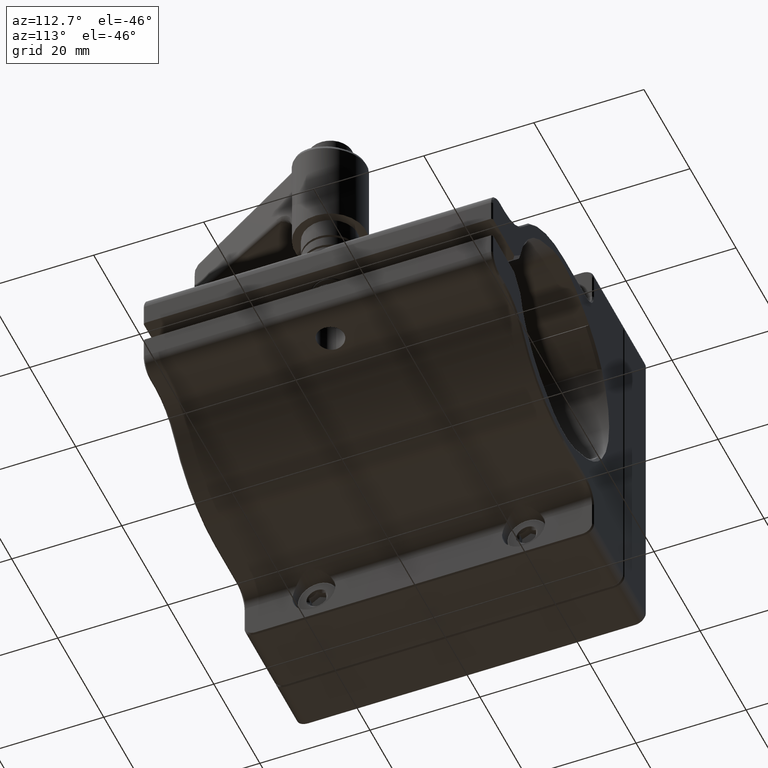
[diagram: clean part render]
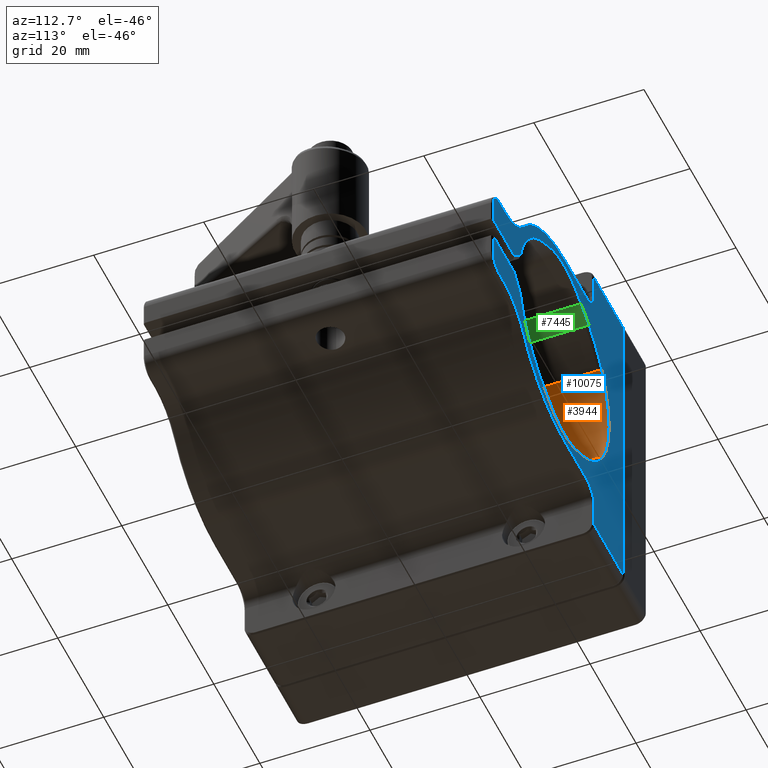
[diagram: same view with three faces highlighted in distinct colors, each labeled with its STEP entity id]
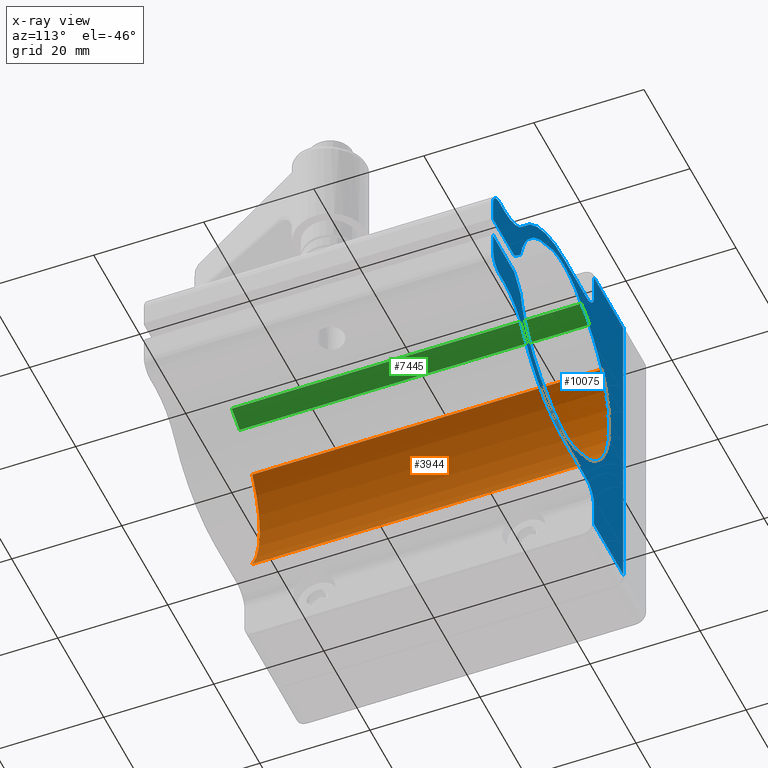
[diagram: x-ray of the same camera — body ghosted, the three highlighted faces saturated]
A machine part, auxiliary view with three faces highlighted in distinct colors.
The next image is the same camera in x-ray (body ghosted, the three faces saturated) — at least one of them is partly hidden behind the body in this view.
Their STEP definitions:

[orange] entity #3944 — the highlighted cylindrical surface (partial cylindrical patch) has radius 19.55 mm, axis along (-0, 1, -0).
#443 = VERTEX_POINT ( 'NONE', #1757 ) ;
#1004 = ORIENTED_EDGE ( 'NONE', *, *, #11285, .F. ) ;
#1007 = CARTESIAN_POINT ( 'NONE',  ( 3.001532178586801880, 31.75000000000000000, 10.79036806285064642 ) ) ;
#1424 = VECTOR ( 'NONE', #7777, 1000.000000000000000 ) ;
#1490 = VERTEX_POINT ( 'NONE', #13566 ) ;
#1684 = CIRCLE ( 'NONE', #2959, 19.55000000000000071 ) ;
#1757 = CARTESIAN_POINT ( 'NONE',  ( 3.001532178586801880, -31.75000000000001421, 10.79036806285064642 ) ) ;
#1894 = ORIENTED_EDGE ( 'NONE', *, *, #11329, .F. ) ;
#2117 = AXIS2_PLACEMENT_3D ( 'NONE', #8282, #6907, #13236 ) ;
#2224 = DIRECTION ( 'NONE',  ( 0.000000000000000000, 0.000000000000000000, 1.000000000000000000 ) ) ;
#2959 = AXIS2_PLACEMENT_3D ( 'NONE', #10857, #7138, #15984 ) ;
#3944 = ADVANCED_FACE ( 'NONE', ( #4307 ), #9265, .F. ) ;
#4039 = LINE ( 'NONE', #16057, #1424 ) ;
#4307 = FACE_OUTER_BOUND ( 'NONE', #9374, .T. ) ;
#5311 = DIRECTION ( 'NONE',  ( -0.000000000000000000, 1.000000000000000000, -0.000000000000000000 ) ) ;
#6059 = EDGE_CURVE ( 'NONE', #14766, #1490, #15122, .T. ) ;
#6907 = DIRECTION ( 'NONE',  ( -0.000000000000000000, 1.000000000000000000, -0.000000000000000000 ) ) ;
#7005 = DIRECTION ( 'NONE',  ( 0.000000000000000000, 1.000000000000000000, 0.000000000000000000 ) ) ;
#7138 = DIRECTION ( 'NONE',  ( 0.000000000000000000, 1.000000000000000000, 0.000000000000000000 ) ) ;
#7777 = DIRECTION ( 'NONE',  ( -0.000000000000000000, 1.000000000000000000, -0.000000000000000000 ) ) ;
#8282 = CARTESIAN_POINT ( 'NONE',  ( 19.30400000000000205, -31.75000000000001421, 0.000000000000000000 ) ) ;
#8441 = VERTEX_POINT ( 'NONE', #1007 ) ;
#8548 = CARTESIAN_POINT ( 'NONE',  ( 3.001532178586803656, -31.75000000000001421, -10.79036806285064642 ) ) ;
#8879 = AXIS2_PLACEMENT_3D ( 'NONE', #12209, #7005, #2224 ) ;
#9265 = CYLINDRICAL_SURFACE ( 'NONE', #2117, 19.55000000000000071 ) ;
#9311 = EDGE_CURVE ( 'NONE', #1490, #8441, #12500, .T. ) ;
#9374 = EDGE_LOOP ( 'NONE', ( #14171, #1894, #1004, #13448 ) ) ;
#9942 = VECTOR ( 'NONE', #5311, 1000.000000000000000 ) ;
#10082 = CARTESIAN_POINT ( 'NONE',  ( 3.001532178586803656, -31.75000000000001421, -10.79036806285064642 ) ) ;
#10857 = CARTESIAN_POINT ( 'NONE',  ( 19.30400000000000205, -31.75000000000001421, 0.000000000000000000 ) ) ;
#11285 = EDGE_CURVE ( 'NONE', #14766, #443, #1684, .T. ) ;
#11329 = EDGE_CURVE ( 'NONE', #443, #8441, #4039, .T. ) ;
#12209 = CARTESIAN_POINT ( 'NONE',  ( 19.30400000000000205, 31.75000000000000000, 0.000000000000000000 ) ) ;
#12500 = CIRCLE ( 'NONE', #8879, 19.55000000000000071 ) ;
#13236 = DIRECTION ( 'NONE',  ( 0.000000000000000000, 0.000000000000000000, 1.000000000000000000 ) ) ;
#13448 = ORIENTED_EDGE ( 'NONE', *, *, #6059, .T. ) ;
#13566 = CARTESIAN_POINT ( 'NONE',  ( 3.001532178586803656, 31.75000000000000000, -10.79036806285064642 ) ) ;
#14171 = ORIENTED_EDGE ( 'NONE', *, *, #9311, .T. ) ;
#14766 = VERTEX_POINT ( 'NONE', #8548 ) ;
#15122 = LINE ( 'NONE', #10082, #9942 ) ;
#15984 = DIRECTION ( 'NONE',  ( 0.000000000000000000, 0.000000000000000000, 1.000000000000000000 ) ) ;
#16057 = CARTESIAN_POINT ( 'NONE',  ( 3.001532178586801880, -31.75000000000001421, 10.79036806285064642 ) ) ;

[blue] entity #10075 — the highlighted planar face has unit normal (0, -1, 0).
#56 = CARTESIAN_POINT ( 'NONE',  ( 19.30400000000000205, 31.75000000000000000, 0.000000000000000000 ) ) ;
#63 = PLANE ( 'NONE',  #3170 ) ;
#67 = CARTESIAN_POINT ( 'NONE',  ( 45.25009797252760535, 31.75000000000000000, -8.649999999999984368 ) ) ;
#72 = CARTESIAN_POINT ( 'NONE',  ( 19.30400000000000205, 31.75000000000000000, 0.000000000000000000 ) ) ;
#102 = DIRECTION ( 'NONE',  ( 0.000000000000000000, 0.000000000000000000, -1.000000000000000000 ) ) ;
#184 = VERTEX_POINT ( 'NONE', #3443 ) ;
#344 = DIRECTION ( 'NONE',  ( 0.000000000000000000, 0.000000000000000000, -1.000000000000000000 ) ) ;
#365 = CARTESIAN_POINT ( 'NONE',  ( 19.30399999999999849, 31.75000000000000000, -21.84999999999999787 ) ) ;
#385 = CARTESIAN_POINT ( 'NONE',  ( 26.63745990643354133, 31.75000000000000000, -18.12244094488190171 ) ) ;
#426 = AXIS2_PLACEMENT_3D ( 'NONE', #3882, #11532, #6577 ) ;
#467 = CARTESIAN_POINT ( 'NONE',  ( 6.604000000000000092, 31.75000000000000000, 21.84999999999998366 ) ) ;
#519 = VECTOR ( 'NONE', #6858, 1000.000000000000000 ) ;
#530 = EDGE_CURVE ( 'NONE', #4277, #6071, #10355, .T. ) ;
#569 = CARTESIAN_POINT ( 'NONE',  ( 50.16899999999998272, 31.75000000000000000, -5.899999999999997691 ) ) ;
#591 = VERTEX_POINT ( 'NONE', #7013 ) ;
#651 = DIRECTION ( 'NONE',  ( -0.000000000000000000, 1.000000000000000000, -0.000000000000000000 ) ) ;
#679 = EDGE_CURVE ( 'NONE', #9203, #9536, #8288, .T. ) ;
#748 = CARTESIAN_POINT ( 'NONE',  ( 19.30399999999999849, 31.75000000000000000, 21.84999999999999076 ) ) ;
#770 = CARTESIAN_POINT ( 'NONE',  ( -6.354000000000000092, 31.75000000000000000, 31.75000000000001421 ) ) ;
#856 = DIRECTION ( 'NONE',  ( 0.000000000000000000, 0.000000000000000000, -1.000000000000000000 ) ) ;
#937 = DIRECTION ( 'NONE',  ( 0.000000000000000000, 1.000000000000000000, 0.000000000000000000 ) ) ;
#1007 = CARTESIAN_POINT ( 'NONE',  ( 3.001532178586801880, 31.75000000000000000, 10.79036806285064642 ) ) ;
#1094 = CARTESIAN_POINT ( 'NONE',  ( 38.28875492511669876, 31.75000000000000000, 4.667074076255611104 ) ) ;
#1129 = DIRECTION ( 'NONE',  ( 0.000000000000000000, 1.000000000000000000, 0.000000000000000000 ) ) ;
#1227 = ORIENTED_EDGE ( 'NONE', *, *, #10971, .T. ) ;
#1263 = VECTOR ( 'NONE', #3943, 1000.000000000000000 ) ;
#1381 = CIRCLE ( 'NONE', #2925, 19.54999999999999716 ) ;
#1392 = VECTOR ( 'NONE', #14695, 1000.000000000000000 ) ;
#1435 = DIRECTION ( 'NONE',  ( 0.000000000000000000, 0.000000000000000000, -1.000000000000000000 ) ) ;
#1490 = VERTEX_POINT ( 'NONE', #13566 ) ;
#1664 = ORIENTED_EDGE ( 'NONE', *, *, #5138, .T. ) ;
#1681 = CARTESIAN_POINT ( 'NONE',  ( 45.25009797252760535, 31.75000000000000000, -18.89999999999999858 ) ) ;
#1732 = VERTEX_POINT ( 'NONE', #385 ) ;
#1840 = AXIS2_PLACEMENT_3D ( 'NONE', #8163, #13114, #1992 ) ;
#1848 = DIRECTION ( 'NONE',  ( 0.7071067811865486830, 0.000000000000000000, 0.7071067811865464625 ) ) ;
#1893 = EDGE_CURVE ( 'NONE', #4456, #9321, #9659, .T. ) ;
#1969 = ORIENTED_EDGE ( 'NONE', *, *, #8982, .T. ) ;
#1992 = DIRECTION ( 'NONE',  ( 0.000000000000000000, 0.000000000000000000, -1.000000000000000000 ) ) ;
#2029 = ORIENTED_EDGE ( 'NONE', *, *, #3473, .T. ) ;
#2157 = EDGE_CURVE ( 'NONE', #9120, #184, #4278, .T. ) ;
#2224 = DIRECTION ( 'NONE',  ( 0.000000000000000000, 0.000000000000000000, 1.000000000000000000 ) ) ;
#2245 = VERTEX_POINT ( 'NONE', #15797 ) ;
#2292 = ORIENTED_EDGE ( 'NONE', *, *, #3083, .T. ) ;
#2361 = VERTEX_POINT ( 'NONE', #365 ) ;
#2493 = ORIENTED_EDGE ( 'NONE', *, *, #13183, .T. ) ;
#2517 = VERTEX_POINT ( 'NONE', #5776 ) ;
#2529 = LINE ( 'NONE', #11224, #6819 ) ;
#2584 = CARTESIAN_POINT ( 'NONE',  ( 6.604000000000000092, 31.75000000000000000, -8.649999999999984368 ) ) ;
#2713 = CARTESIAN_POINT ( 'NONE',  ( 19.30400000000000205, 31.75000000000000000, 20.32000000000000028 ) ) ;
#2766 = CARTESIAN_POINT ( 'NONE',  ( 9.604000000000000981, 31.75000000000000000, 25.09999999999999787 ) ) ;
#2825 = CARTESIAN_POINT ( 'NONE',  ( 6.353999999999988546, 31.75000000000000000, -25.10000000000000497 ) ) ;
#2839 = DIRECTION ( 'NONE',  ( -0.000000000000000000, 1.000000000000000000, -0.000000000000000000 ) ) ;
#2879 = EDGE_CURVE ( 'NONE', #6828, #7786, #7001, .T. ) ;
#2918 = CARTESIAN_POINT ( 'NONE',  ( 36.96512899376099170, 31.75000000000000000, -12.86495327102803010 ) ) ;
#2925 = AXIS2_PLACEMENT_3D ( 'NONE', #4059, #3894, #3983 ) ;
#2941 = ORIENTED_EDGE ( 'NONE', *, *, #14798, .F. ) ;
#2973 = CIRCLE ( 'NONE', #8687, 19.54999999999999716 ) ;
#3055 = ORIENTED_EDGE ( 'NONE', *, *, #5333, .T. ) ;
#3083 = EDGE_CURVE ( 'NONE', #2361, #6828, #8239, .T. ) ;
#3116 = VERTEX_POINT ( 'NONE', #14333 ) ;
#3133 = DIRECTION ( 'NONE',  ( 1.000000000000000000, -0.000000000000000000, -0.000000000000000000 ) ) ;
#3162 = EDGE_CURVE ( 'NONE', #7295, #1732, #13763, .T. ) ;
#3170 = AXIS2_PLACEMENT_3D ( 'NONE', #5997, #8435, #6147 ) ;
#3197 = AXIS2_PLACEMENT_3D ( 'NONE', #3398, #16063, #13547 ) ;
#3207 = CARTESIAN_POINT ( 'NONE',  ( 19.30400000000000205, 31.75000000000000000, 0.000000000000000000 ) ) ;
#3212 = CARTESIAN_POINT ( 'NONE',  ( 40.60227561077902436, 31.75000000000000000, -2.353553390593261962 ) ) ;
#3278 = ORIENTED_EDGE ( 'NONE', *, *, #8670, .F. ) ;
#3305 = EDGE_CURVE ( 'NONE', #11302, #5380, #3643, .T. ) ;
#3398 = CARTESIAN_POINT ( 'NONE',  ( 19.30400000000000205, 31.75000000000000000, 0.000000000000000000 ) ) ;
#3443 = CARTESIAN_POINT ( 'NONE',  ( 40.95582900137230098, 31.75000000000000000, -1.999999999999997335 ) ) ;
#3455 = CARTESIAN_POINT ( 'NONE',  ( 6.604000000000000092, 31.75000000000000000, -21.84999999999999432 ) ) ;
#3458 = CIRCLE ( 'NONE', #4227, 19.55000000000000426 ) ;
#3473 = EDGE_CURVE ( 'NONE', #4862, #9203, #13233, .T. ) ;
#3554 = CARTESIAN_POINT ( 'NONE',  ( 6.604000000000000092, 31.75000000000000000, 8.649999999999984368 ) ) ;
#3643 = CIRCLE ( 'NONE', #11449, 10.25000000000001599 ) ;
#3731 = VECTOR ( 'NONE', #1848, 1000.000000000000000 ) ;
#3882 = CARTESIAN_POINT ( 'NONE',  ( 19.30400000000000205, 31.75000000000000000, 0.000000000000000000 ) ) ;
#3894 = DIRECTION ( 'NONE',  ( 0.000000000000000000, -1.000000000000000000, 0.000000000000000000 ) ) ;
#3943 = DIRECTION ( 'NONE',  ( 1.000000000000000000, 0.000000000000000000, 0.000000000000000000 ) ) ;
#3983 = DIRECTION ( 'NONE',  ( 0.000000000000000000, 0.000000000000000000, -1.000000000000000000 ) ) ;
#4059 = CARTESIAN_POINT ( 'NONE',  ( 19.30400000000000205, 31.75000000000000000, 0.000000000000000000 ) ) ;
#4132 = DIRECTION ( 'NONE',  ( 0.000000000000000000, 0.000000000000000000, -1.000000000000000000 ) ) ;
#4197 = DIRECTION ( 'NONE',  ( 0.000000000000000000, 0.000000000000000000, -1.000000000000000000 ) ) ;
#4225 = ORIENTED_EDGE ( 'NONE', *, *, #2157, .T. ) ;
#4227 = AXIS2_PLACEMENT_3D ( 'NONE', #4897, #937, #5883 ) ;
#4271 = CARTESIAN_POINT ( 'NONE',  ( 19.30400000000000205, 31.75000000000000000, 6.985000000000000320 ) ) ;
#4277 = VERTEX_POINT ( 'NONE', #6868 ) ;
#4278 = LINE ( 'NONE', #3212, #3731 ) ;
#4456 = VERTEX_POINT ( 'NONE', #13524 ) ;
#4498 = VERTEX_POINT ( 'NONE', #15966 ) ;
#4626 = CIRCLE ( 'NONE', #15503, 2.749999999999988454 ) ;
#4714 = LINE ( 'NONE', #2584, #7164 ) ;
#4739 = LINE ( 'NONE', #9689, #7403 ) ;
#4862 = VERTEX_POINT ( 'NONE', #748 ) ;
#4871 = ORIENTED_EDGE ( 'NONE', *, *, #10442, .T. ) ;
#4883 = ORIENTED_EDGE ( 'NONE', *, *, #11221, .T. ) ;
#4897 = CARTESIAN_POINT ( 'NONE',  ( 19.30400000000000205, 31.75000000000000000, 0.000000000000000000 ) ) ;
#5067 = ORIENTED_EDGE ( 'NONE', *, *, #8104, .F. ) ;
#5090 = CARTESIAN_POINT ( 'NONE',  ( 47.41899999999999693, 31.75000000000000000, 5.899999999999997691 ) ) ;
#5103 = ORIENTED_EDGE ( 'NONE', *, *, #1893, .T. ) ;
#5138 = EDGE_CURVE ( 'NONE', #2517, #591, #6807, .T. ) ;
#5294 = CIRCLE ( 'NONE', #6327, 19.54999999999999361 ) ;
#5297 = CARTESIAN_POINT ( 'NONE',  ( 47.41899999999999693, 31.75000000000000000, -5.899999999999997691 ) ) ;
#5333 = EDGE_CURVE ( 'NONE', #9321, #14656, #1381, .T. ) ;
#5356 = AXIS2_PLACEMENT_3D ( 'NONE', #56, #1129, #7374 ) ;
#5380 = VERTEX_POINT ( 'NONE', #2918 ) ;
#5404 = DIRECTION ( 'NONE',  ( 0.000000000000000000, 0.000000000000000000, -1.000000000000000000 ) ) ;
#5450 = AXIS2_PLACEMENT_3D ( 'NONE', #14000, #10020, #13673 ) ;
#5548 = VERTEX_POINT ( 'NONE', #13459 ) ;
#5570 = DIRECTION ( 'NONE',  ( 0.000000000000000000, 1.000000000000000000, 0.000000000000000000 ) ) ;
#5602 = EDGE_CURVE ( 'NONE', #10814, #8441, #9419, .T. ) ;
#5625 = DIRECTION ( 'NONE',  ( -1.746632332791293909E-15, 0.000000000000000000, -1.000000000000000000 ) ) ;
#5735 = ORIENTED_EDGE ( 'NONE', *, *, #2879, .T. ) ;
#5776 = CARTESIAN_POINT ( 'NONE',  ( 6.353999999999988546, 31.75000000000000000, 25.09999999999999787 ) ) ;
#5781 = VERTEX_POINT ( 'NONE', #7600 ) ;
#5795 = DIRECTION ( 'NONE',  ( 0.000000000000000000, -1.000000000000000000, 0.000000000000000000 ) ) ;
#5873 = EDGE_CURVE ( 'NONE', #5548, #7623, #11073, .T. ) ;
#5883 = DIRECTION ( 'NONE',  ( 0.000000000000000000, 0.000000000000000000, 1.000000000000000000 ) ) ;
#5906 = EDGE_CURVE ( 'NONE', #10814, #4498, #3458, .T. ) ;
#5927 = CARTESIAN_POINT ( 'NONE',  ( 9.604000000000000981, 31.75000000000000000, -21.84999999999999432 ) ) ;
#5956 = CARTESIAN_POINT ( 'NONE',  ( 6.604000000000000092, 31.75000000000000000, -29.74999999999998579 ) ) ;
#5997 = CARTESIAN_POINT ( 'NONE',  ( 6.604000000000000092, 31.75000000000000000, 31.75000000000001421 ) ) ;
#6045 = DIRECTION ( 'NONE',  ( -1.000000000000000000, 0.000000000000000000, 0.000000000000000000 ) ) ;
#6056 = AXIS2_PLACEMENT_3D ( 'NONE', #13767, #10110, #5404 ) ;
#6071 = VERTEX_POINT ( 'NONE', #15207 ) ;
#6110 = CIRCLE ( 'NONE', #12082, 21.84999999999999787 ) ;
#6147 = DIRECTION ( 'NONE',  ( 0.000000000000000000, -0.000000000000000000, -1.000000000000000000 ) ) ;
#6206 = VECTOR ( 'NONE', #6045, 1000.000000000000000 ) ;
#6327 = AXIS2_PLACEMENT_3D ( 'NONE', #72, #6406, #7542 ) ;
#6377 = DIRECTION ( 'NONE',  ( 0.000000000000000000, -1.000000000000000000, 0.000000000000000000 ) ) ;
#6406 = DIRECTION ( 'NONE',  ( 0.000000000000000000, -1.000000000000000000, 0.000000000000000000 ) ) ;
#6431 = ORIENTED_EDGE ( 'NONE', *, *, #15424, .F. ) ;
#6512 = EDGE_LOOP ( 'NONE', ( #12256, #4225, #7816, #10749, #4871, #12915, #11485, #1969, #2292, #5735, #13738, #2493, #15101, #1227, #14550, #1664, #7821, #2029, #8628, #4883, #15337, #15166, #2941, #5103, #3055, #11676, #6431, #3278, #12509, #8655, #11441, #7483, #15604, #8864, #5067 ) ) ;
#6574 = CARTESIAN_POINT ( 'NONE',  ( 6.604000000000000092, 31.75000000000000000, 29.75000000000001421 ) ) ;
#6577 = DIRECTION ( 'NONE',  ( 0.000000000000000000, 0.000000000000000000, 1.000000000000000000 ) ) ;
#6594 = DIRECTION ( 'NONE',  ( 0.000000000000000000, -1.000000000000000000, 0.000000000000000000 ) ) ;
#6635 = EDGE_CURVE ( 'NONE', #7786, #5781, #2529, .T. ) ;
#6657 = CIRCLE ( 'NONE', #5356, 19.55000000000000426 ) ;
#6671 = CARTESIAN_POINT ( 'NONE',  ( 9.604000000000000981, 31.75000000000000000, -25.10000000000000497 ) ) ;
#6807 = CIRCLE ( 'NONE', #14069, 3.250000000000013323 ) ;
#6819 = VECTOR ( 'NONE', #102, 1000.000000000000000 ) ;
#6828 = VERTEX_POINT ( 'NONE', #5927 ) ;
#6858 = DIRECTION ( 'NONE',  ( 0.000000000000000000, 0.000000000000000000, 1.000000000000000000 ) ) ;
#6868 = CARTESIAN_POINT ( 'NONE',  ( -6.354000000000000092, 31.75000000000000000, -29.74999999999998579 ) ) ;
#6909 = EDGE_CURVE ( 'NONE', #8947, #9081, #15918, .T. ) ;
#7001 = CIRCLE ( 'NONE', #13482, 3.250000000000013323 ) ;
#7005 = DIRECTION ( 'NONE',  ( 0.000000000000000000, 1.000000000000000000, 0.000000000000000000 ) ) ;
#7013 = CARTESIAN_POINT ( 'NONE',  ( 9.604000000000000981, 31.75000000000000000, 21.84999999999998366 ) ) ;
#7149 = CIRCLE ( 'NONE', #11801, 13.33500000000000085 ) ;
#7164 = VECTOR ( 'NONE', #11042, 1000.000000000000000 ) ;
#7295 = VERTEX_POINT ( 'NONE', #15266 ) ;
#7374 = DIRECTION ( 'NONE',  ( 0.000000000000000000, 0.000000000000000000, 1.000000000000000000 ) ) ;
#7403 = VECTOR ( 'NONE', #13418, 1000.000000000000000 ) ;
#7409 = DIRECTION ( 'NONE',  ( 1.000000000000000000, -0.000000000000000000, -1.254419997090733322E-16 ) ) ;
#7483 = ORIENTED_EDGE ( 'NONE', *, *, #11595, .T. ) ;
#7542 = DIRECTION ( 'NONE',  ( 0.000000000000000000, 0.000000000000000000, -1.000000000000000000 ) ) ;
#7600 = CARTESIAN_POINT ( 'NONE',  ( 6.353999999999986770, 31.75000000000000000, -29.74999999999998579 ) ) ;
#7616 = AXIS2_PLACEMENT_3D ( 'NONE', #5297, #2839, #4132 ) ;
#7623 = VERTEX_POINT ( 'NONE', #15995 ) ;
#7716 = EDGE_CURVE ( 'NONE', #13686, #11302, #4714, .T. ) ;
#7786 = VERTEX_POINT ( 'NONE', #2825 ) ;
#7816 = ORIENTED_EDGE ( 'NONE', *, *, #8526, .F. ) ;
#7821 = ORIENTED_EDGE ( 'NONE', *, *, #12474, .T. ) ;
#7852 = EDGE_CURVE ( 'NONE', #11016, #14656, #8720, .T. ) ;
#7990 = CARTESIAN_POINT ( 'NONE',  ( 35.01940162506658538, 31.75000000000000000, 11.62878548098874809 ) ) ;
#8012 = CARTESIAN_POINT ( 'NONE',  ( 26.63745990643354133, 31.75000000000000000, 18.12244094488190171 ) ) ;
#8089 = DIRECTION ( 'NONE',  ( -1.000000000000000000, 0.000000000000000000, 0.000000000000000000 ) ) ;
#8104 = EDGE_CURVE ( 'NONE', #8371, #1732, #6657, .T. ) ;
#8163 = CARTESIAN_POINT ( 'NONE',  ( 19.30400000000000205, 31.75000000000000000, -6.985000000000000320 ) ) ;
#8239 = LINE ( 'NONE', #3455, #15558 ) ;
#8288 = CIRCLE ( 'NONE', #9597, 10.25000000000001243 ) ;
#8317 = AXIS2_PLACEMENT_3D ( 'NONE', #11959, #14407, #5625 ) ;
#8357 = CARTESIAN_POINT ( 'NONE',  ( 38.18938902501361099, 31.75000000000000000, 4.766439976358697983 ) ) ;
#8371 = VERTEX_POINT ( 'NONE', #10283 ) ;
#8410 = CIRCLE ( 'NONE', #3197, 19.55000000000000426 ) ;
#8435 = DIRECTION ( 'NONE',  ( 0.000000000000000000, -1.000000000000000000, 0.000000000000000000 ) ) ;
#8441 = VERTEX_POINT ( 'NONE', #1007 ) ;
#8526 = EDGE_CURVE ( 'NONE', #8947, #184, #4739, .T. ) ;
#8566 = CARTESIAN_POINT ( 'NONE',  ( 45.25009797252760535, 31.75000000000000000, 18.89999999999999858 ) ) ;
#8628 = ORIENTED_EDGE ( 'NONE', *, *, #679, .T. ) ;
#8655 = ORIENTED_EDGE ( 'NONE', *, *, #5602, .T. ) ;
#8670 = EDGE_CURVE ( 'NONE', #4498, #12169, #7149, .T. ) ;
#8687 = AXIS2_PLACEMENT_3D ( 'NONE', #3207, #10292, #14421 ) ;
#8720 = CIRCLE ( 'NONE', #426, 19.55000000000000426 ) ;
#8864 = ORIENTED_EDGE ( 'NONE', *, *, #3162, .T. ) ;
#8871 = DIRECTION ( 'NONE',  ( 0.000000000000000000, 0.000000000000000000, -1.000000000000000000 ) ) ;
#8879 = AXIS2_PLACEMENT_3D ( 'NONE', #12209, #7005, #2224 ) ;
#8947 = VERTEX_POINT ( 'NONE', #9316 ) ;
#8982 = EDGE_CURVE ( 'NONE', #5380, #2361, #6110, .T. ) ;
#9081 = VERTEX_POINT ( 'NONE', #569 ) ;
#9105 = DIRECTION ( 'NONE',  ( 0.000000000000000000, -1.000000000000000000, 0.000000000000000000 ) ) ;
#9120 = VERTEX_POINT ( 'NONE', #11087 ) ;
#9203 = VERTEX_POINT ( 'NONE', #13675 ) ;
#9311 = EDGE_CURVE ( 'NONE', #1490, #8441, #12500, .T. ) ;
#9316 = CARTESIAN_POINT ( 'NONE',  ( 50.16899999999999693, 31.75000000000000000, -1.999999999999998668 ) ) ;
#9321 = VERTEX_POINT ( 'NONE', #1094 ) ;
#9419 = CIRCLE ( 'NONE', #6056, 19.55000000000002558 ) ;
#9536 = VERTEX_POINT ( 'NONE', #15203 ) ;
#9597 = AXIS2_PLACEMENT_3D ( 'NONE', #8566, #5795, #856 ) ;
#9616 = DIRECTION ( 'NONE',  ( 0.000000000000000000, 0.000000000000000000, -1.000000000000000000 ) ) ;
#9659 = LINE ( 'NONE', #8357, #13854 ) ;
#9689 = CARTESIAN_POINT ( 'NONE',  ( 81.53399999999999181, 31.75000000000000000, -2.000000000000002665 ) ) ;
#9749 = CARTESIAN_POINT ( 'NONE',  ( 50.16899999999998272, 31.75000000000000000, -5.899999999999998579 ) ) ;
#9960 = VECTOR ( 'NONE', #12255, 1000.000000000000000 ) ;
#10020 = DIRECTION ( 'NONE',  ( 0.000000000000000000, 1.000000000000000000, 0.000000000000000000 ) ) ;
#10034 = DIRECTION ( 'NONE',  ( -0.000000000000000000, 1.000000000000000000, -0.000000000000000000 ) ) ;
#10051 = VERTEX_POINT ( 'NONE', #11033 ) ;
#10075 = ADVANCED_FACE ( 'NONE', ( #11184 ), #63, .F. ) ;
#10110 = DIRECTION ( 'NONE',  ( 0.000000000000000000, -1.000000000000000000, 0.000000000000000000 ) ) ;
#10145 = VECTOR ( 'NONE', #7409, 1000.000000000000000 ) ;
#10200 = CIRCLE ( 'NONE', #7616, 2.749999999999985789 ) ;
#10222 = LINE ( 'NONE', #6574, #10715 ) ;
#10283 = CARTESIAN_POINT ( 'NONE',  ( 35.01940162506658538, 31.75000000000000000, -11.62878548098874809 ) ) ;
#10292 = DIRECTION ( 'NONE',  ( 0.000000000000000000, -1.000000000000000000, 0.000000000000000000 ) ) ;
#10355 = LINE ( 'NONE', #770, #519 ) ;
#10442 = EDGE_CURVE ( 'NONE', #9081, #13686, #10200, .T. ) ;
#10715 = VECTOR ( 'NONE', #3133, 1000.000000000000000 ) ;
#10749 = ORIENTED_EDGE ( 'NONE', *, *, #6909, .T. ) ;
#10809 = EDGE_CURVE ( 'NONE', #7295, #10051, #8410, .T. ) ;
#10814 = VERTEX_POINT ( 'NONE', #10865 ) ;
#10865 = CARTESIAN_POINT ( 'NONE',  ( 8.513631937149188644, 31.75000000000000000, 16.30246782141309225 ) ) ;
#10889 = EDGE_CURVE ( 'NONE', #8371, #9120, #5294, .T. ) ;
#10971 = EDGE_CURVE ( 'NONE', #6071, #3116, #10222, .T. ) ;
#10991 = VECTOR ( 'NONE', #4197, 1000.000000000000000 ) ;
#10992 = VECTOR ( 'NONE', #9616, 1000.000000000000000 ) ;
#11016 = VERTEX_POINT ( 'NONE', #8012 ) ;
#11033 = CARTESIAN_POINT ( 'NONE',  ( 8.513631937149185092, 31.75000000000000000, -16.30246782141308870 ) ) ;
#11042 = DIRECTION ( 'NONE',  ( -1.000000000000000000, 0.000000000000000000, 0.000000000000000000 ) ) ;
#11062 = EDGE_CURVE ( 'NONE', #3116, #2517, #14262, .T. ) ;
#11073 = LINE ( 'NONE', #15774, #10992 ) ;
#11087 = CARTESIAN_POINT ( 'NONE',  ( 38.28875492511670586, 31.75000000000000000, -4.667074076255578241 ) ) ;
#11184 = FACE_OUTER_BOUND ( 'NONE', #6512, .T. ) ;
#11221 = EDGE_CURVE ( 'NONE', #9536, #2245, #13382, .T. ) ;
#11224 = CARTESIAN_POINT ( 'NONE',  ( 6.353999999999986770, 31.75000000000000000, -29.74999999999998579 ) ) ;
#11302 = VERTEX_POINT ( 'NONE', #67 ) ;
#11306 = LINE ( 'NONE', #12523, #10145 ) ;
#11433 = CARTESIAN_POINT ( 'NONE',  ( 47.41899999999999693, 31.75000000000000000, -8.649999999999984368 ) ) ;
#11441 = ORIENTED_EDGE ( 'NONE', *, *, #9311, .F. ) ;
#11449 = AXIS2_PLACEMENT_3D ( 'NONE', #1681, #6377, #1435 ) ;
#11485 = ORIENTED_EDGE ( 'NONE', *, *, #3305, .T. ) ;
#11532 = DIRECTION ( 'NONE',  ( 0.000000000000000000, 1.000000000000000000, 0.000000000000000000 ) ) ;
#11595 = EDGE_CURVE ( 'NONE', #1490, #10051, #2973, .T. ) ;
#11676 = ORIENTED_EDGE ( 'NONE', *, *, #7852, .F. ) ;
#11801 = AXIS2_PLACEMENT_3D ( 'NONE', #4271, #5570, #14250 ) ;
#11959 = CARTESIAN_POINT ( 'NONE',  ( 19.30400000000000205, 31.75000000000000000, 0.000000000000000000 ) ) ;
#12082 = AXIS2_PLACEMENT_3D ( 'NONE', #14355, #651, #14272 ) ;
#12133 = LINE ( 'NONE', #5956, #6206 ) ;
#12169 = VERTEX_POINT ( 'NONE', #2713 ) ;
#12173 = DIRECTION ( 'NONE',  ( -0.7071067811865479058, 0.000000000000000000, 0.7071067811865471286 ) ) ;
#12209 = CARTESIAN_POINT ( 'NONE',  ( 19.30400000000000205, 31.75000000000000000, 0.000000000000000000 ) ) ;
#12255 = DIRECTION ( 'NONE',  ( 1.000000000000000000, 0.000000000000000000, 0.000000000000000000 ) ) ;
#12256 = ORIENTED_EDGE ( 'NONE', *, *, #10889, .T. ) ;
#12455 = CIRCLE ( 'NONE', #5450, 13.33500000000000085 ) ;
#12474 = EDGE_CURVE ( 'NONE', #591, #4862, #15066, .T. ) ;
#12500 = CIRCLE ( 'NONE', #8879, 19.55000000000000071 ) ;
#12504 = EDGE_CURVE ( 'NONE', #2245, #5548, #4626, .T. ) ;
#12509 = ORIENTED_EDGE ( 'NONE', *, *, #5906, .F. ) ;
#12523 = CARTESIAN_POINT ( 'NONE',  ( 81.53399999999999181, 31.75000000000000000, 1.999999999999997335 ) ) ;
#12915 = ORIENTED_EDGE ( 'NONE', *, *, #7716, .T. ) ;
#12962 = CARTESIAN_POINT ( 'NONE',  ( 6.353999999999986770, 31.75000000000000000, 25.09999999999999787 ) ) ;
#13114 = DIRECTION ( 'NONE',  ( -0.000000000000000000, -1.000000000000000000, -0.000000000000000000 ) ) ;
#13183 = EDGE_CURVE ( 'NONE', #5781, #4277, #12133, .T. ) ;
#13233 = CIRCLE ( 'NONE', #8317, 21.84999999999999076 ) ;
#13382 = LINE ( 'NONE', #3554, #9960 ) ;
#13418 = DIRECTION ( 'NONE',  ( -1.000000000000000000, 0.000000000000000000, 1.254419997090733075E-16 ) ) ;
#13459 = CARTESIAN_POINT ( 'NONE',  ( 50.16899999999998272, 31.75000000000000000, 5.899999999999997691 ) ) ;
#13482 = AXIS2_PLACEMENT_3D ( 'NONE', #6671, #6594, #344 ) ;
#13524 = CARTESIAN_POINT ( 'NONE',  ( 40.95582900137230808, 31.75000000000000000, 2.000000000000002665 ) ) ;
#13547 = DIRECTION ( 'NONE',  ( 0.000000000000000000, 0.000000000000000000, 1.000000000000000000 ) ) ;
#13566 = CARTESIAN_POINT ( 'NONE',  ( 3.001532178586803656, 31.75000000000000000, -10.79036806285064642 ) ) ;
#13673 = DIRECTION ( 'NONE',  ( 0.000000000000000000, 0.000000000000000000, 1.000000000000000000 ) ) ;
#13675 = CARTESIAN_POINT ( 'NONE',  ( 36.96512899376099881, 31.75000000000000000, 12.86495327102803365 ) ) ;
#13686 = VERTEX_POINT ( 'NONE', #11433 ) ;
#13738 = ORIENTED_EDGE ( 'NONE', *, *, #6635, .T. ) ;
#13763 = CIRCLE ( 'NONE', #1840, 13.33500000000000085 ) ;
#13767 = CARTESIAN_POINT ( 'NONE',  ( 19.30400000000000205, 31.75000000000000000, 0.000000000000000000 ) ) ;
#13854 = VECTOR ( 'NONE', #12173, 1000.000000000000000 ) ;
#14000 = CARTESIAN_POINT ( 'NONE',  ( 19.30400000000000205, 31.75000000000000000, 6.985000000000000320 ) ) ;
#14069 = AXIS2_PLACEMENT_3D ( 'NONE', #2766, #9105, #8871 ) ;
#14250 = DIRECTION ( 'NONE',  ( 0.000000000000000000, 0.000000000000000000, 1.000000000000000000 ) ) ;
#14262 = LINE ( 'NONE', #12962, #10991 ) ;
#14272 = DIRECTION ( 'NONE',  ( -9.527085451588873535E-16, 0.000000000000000000, -1.000000000000000000 ) ) ;
#14333 = CARTESIAN_POINT ( 'NONE',  ( 6.353999999999986770, 31.75000000000000000, 29.75000000000001421 ) ) ;
#14355 = CARTESIAN_POINT ( 'NONE',  ( 19.30400000000000205, 31.75000000000000000, 0.000000000000000000 ) ) ;
#14407 = DIRECTION ( 'NONE',  ( -0.000000000000000000, 1.000000000000000000, -0.000000000000000000 ) ) ;
#14421 = DIRECTION ( 'NONE',  ( 0.000000000000000000, 0.000000000000000000, -1.000000000000000000 ) ) ;
#14550 = ORIENTED_EDGE ( 'NONE', *, *, #11062, .T. ) ;
#14656 = VERTEX_POINT ( 'NONE', #7990 ) ;
#14695 = DIRECTION ( 'NONE',  ( 0.000000000000000000, 0.000000000000000000, -1.000000000000000000 ) ) ;
#14798 = EDGE_CURVE ( 'NONE', #4456, #7623, #11306, .T. ) ;
#14982 = DIRECTION ( 'NONE',  ( 0.000000000000000000, 0.000000000000000000, -1.000000000000000000 ) ) ;
#15066 = LINE ( 'NONE', #467, #1263 ) ;
#15101 = ORIENTED_EDGE ( 'NONE', *, *, #530, .T. ) ;
#15166 = ORIENTED_EDGE ( 'NONE', *, *, #5873, .T. ) ;
#15203 = CARTESIAN_POINT ( 'NONE',  ( 45.25009797252760535, 31.75000000000000000, 8.649999999999984368 ) ) ;
#15207 = CARTESIAN_POINT ( 'NONE',  ( -6.354000000000000092, 31.75000000000000000, 29.75000000000001421 ) ) ;
#15266 = CARTESIAN_POINT ( 'NONE',  ( 11.97054009356646276, 31.75000000000000000, -18.12244094488190171 ) ) ;
#15337 = ORIENTED_EDGE ( 'NONE', *, *, #12504, .T. ) ;
#15424 = EDGE_CURVE ( 'NONE', #12169, #11016, #12455, .T. ) ;
#15503 = AXIS2_PLACEMENT_3D ( 'NONE', #5090, #10034, #14982 ) ;
#15558 = VECTOR ( 'NONE', #8089, 1000.000000000000000 ) ;
#15604 = ORIENTED_EDGE ( 'NONE', *, *, #10809, .F. ) ;
#15774 = CARTESIAN_POINT ( 'NONE',  ( 50.16899999999998272, 31.75000000000000000, 2.000000000000001332 ) ) ;
#15797 = CARTESIAN_POINT ( 'NONE',  ( 47.41899999999999693, 31.75000000000000000, 8.649999999999987921 ) ) ;
#15918 = LINE ( 'NONE', #9749, #1392 ) ;
#15966 = CARTESIAN_POINT ( 'NONE',  ( 11.97054009356646276, 31.75000000000000000, 18.12244094488190171 ) ) ;
#15995 = CARTESIAN_POINT ( 'NONE',  ( 50.16899999999998272, 31.75000000000000000, 2.000000000000001332 ) ) ;
#16063 = DIRECTION ( 'NONE',  ( 0.000000000000000000, 1.000000000000000000, 0.000000000000000000 ) ) ;

[green] entity #7445 — the highlighted cylindrical surface (partial cylindrical patch) has radius 19.55 mm, axis along (-0, 1, -0).
#499 = CARTESIAN_POINT ( 'NONE',  ( 8.513631937149188644, -31.75000000000001421, 16.30246782141309225 ) ) ;
#820 = DIRECTION ( 'NONE',  ( -0.000000000000000000, 1.000000000000000000, -0.000000000000000000 ) ) ;
#937 = DIRECTION ( 'NONE',  ( 0.000000000000000000, 1.000000000000000000, 0.000000000000000000 ) ) ;
#1223 = ORIENTED_EDGE ( 'NONE', *, *, #5906, .T. ) ;
#1696 = DIRECTION ( 'NONE',  ( 0.000000000000000000, 1.000000000000000000, 0.000000000000000000 ) ) ;
#1813 = DIRECTION ( 'NONE',  ( 0.000000000000000000, -1.000000000000000000, 0.000000000000000000 ) ) ;
#3458 = CIRCLE ( 'NONE', #4227, 19.55000000000000426 ) ;
#3468 = EDGE_CURVE ( 'NONE', #6650, #10814, #5556, .T. ) ;
#3749 = VECTOR ( 'NONE', #1813, 1000.000000000000000 ) ;
#4166 = VECTOR ( 'NONE', #11805, 1000.000000000000000 ) ;
#4227 = AXIS2_PLACEMENT_3D ( 'NONE', #4897, #937, #5883 ) ;
#4459 = CYLINDRICAL_SURFACE ( 'NONE', #11817, 19.55000000000000426 ) ;
#4498 = VERTEX_POINT ( 'NONE', #15966 ) ;
#4625 = CARTESIAN_POINT ( 'NONE',  ( 19.30400000000000205, -31.75000000000001421, 0.000000000000000000 ) ) ;
#4897 = CARTESIAN_POINT ( 'NONE',  ( 19.30400000000000205, 31.75000000000000000, 0.000000000000000000 ) ) ;
#5010 = AXIS2_PLACEMENT_3D ( 'NONE', #7775, #1696, #12810 ) ;
#5547 = LINE ( 'NONE', #14078, #3749 ) ;
#5556 = LINE ( 'NONE', #9370, #4166 ) ;
#5672 = FACE_OUTER_BOUND ( 'NONE', #12496, .T. ) ;
#5883 = DIRECTION ( 'NONE',  ( 0.000000000000000000, 0.000000000000000000, 1.000000000000000000 ) ) ;
#5906 = EDGE_CURVE ( 'NONE', #10814, #4498, #3458, .T. ) ;
#6650 = VERTEX_POINT ( 'NONE', #499 ) ;
#7445 = ADVANCED_FACE ( 'NONE', ( #5672 ), #4459, .F. ) ;
#7775 = CARTESIAN_POINT ( 'NONE',  ( 19.30400000000000205, -31.75000000000001421, 0.000000000000000000 ) ) ;
#9370 = CARTESIAN_POINT ( 'NONE',  ( 8.513631937149188644, -31.75000000000001421, 16.30246782141309225 ) ) ;
#9554 = ORIENTED_EDGE ( 'NONE', *, *, #10161, .F. ) ;
#10161 = EDGE_CURVE ( 'NONE', #6650, #12407, #15373, .T. ) ;
#10793 = DIRECTION ( 'NONE',  ( 0.000000000000000000, 0.000000000000000000, 1.000000000000000000 ) ) ;
#10814 = VERTEX_POINT ( 'NONE', #10865 ) ;
#10865 = CARTESIAN_POINT ( 'NONE',  ( 8.513631937149188644, 31.75000000000000000, 16.30246782141309225 ) ) ;
#11753 = EDGE_CURVE ( 'NONE', #4498, #12407, #5547, .T. ) ;
#11805 = DIRECTION ( 'NONE',  ( -0.000000000000000000, 1.000000000000000000, -0.000000000000000000 ) ) ;
#11817 = AXIS2_PLACEMENT_3D ( 'NONE', #4625, #820, #10793 ) ;
#12407 = VERTEX_POINT ( 'NONE', #14588 ) ;
#12496 = EDGE_LOOP ( 'NONE', ( #1223, #15277, #9554, #14182 ) ) ;
#12810 = DIRECTION ( 'NONE',  ( 0.000000000000000000, 0.000000000000000000, 1.000000000000000000 ) ) ;
#14078 = CARTESIAN_POINT ( 'NONE',  ( 11.97054009356645921, -6.938893903907228378E-15, 18.12244094488189816 ) ) ;
#14182 = ORIENTED_EDGE ( 'NONE', *, *, #3468, .T. ) ;
#14588 = CARTESIAN_POINT ( 'NONE',  ( 11.97054009356646276, -31.75000000000001421, 18.12244094488190171 ) ) ;
#15277 = ORIENTED_EDGE ( 'NONE', *, *, #11753, .T. ) ;
#15373 = CIRCLE ( 'NONE', #5010, 19.55000000000000426 ) ;
#15966 = CARTESIAN_POINT ( 'NONE',  ( 11.97054009356646276, 31.75000000000000000, 18.12244094488190171 ) ) ;